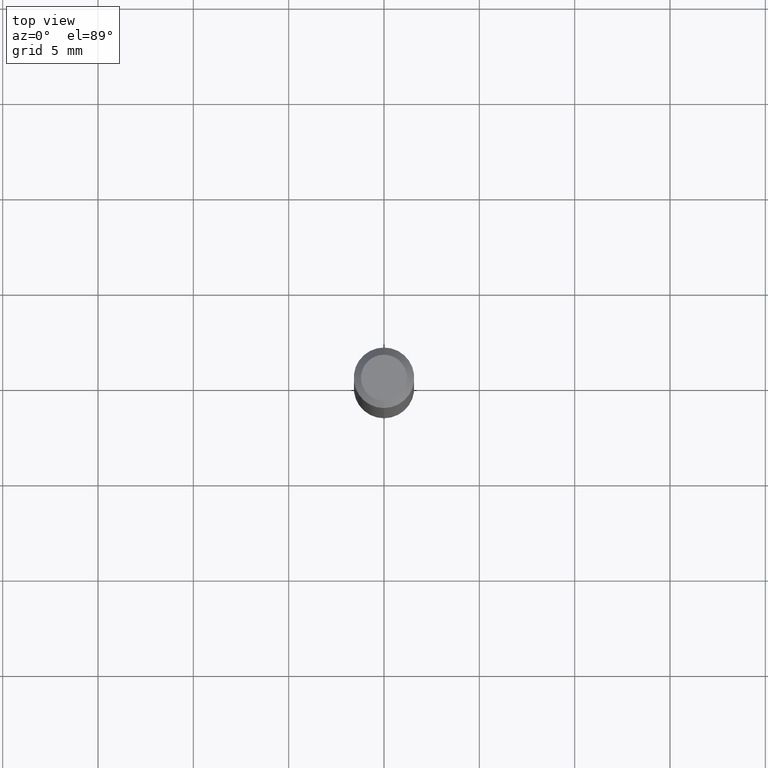
[diagram: clean part render]
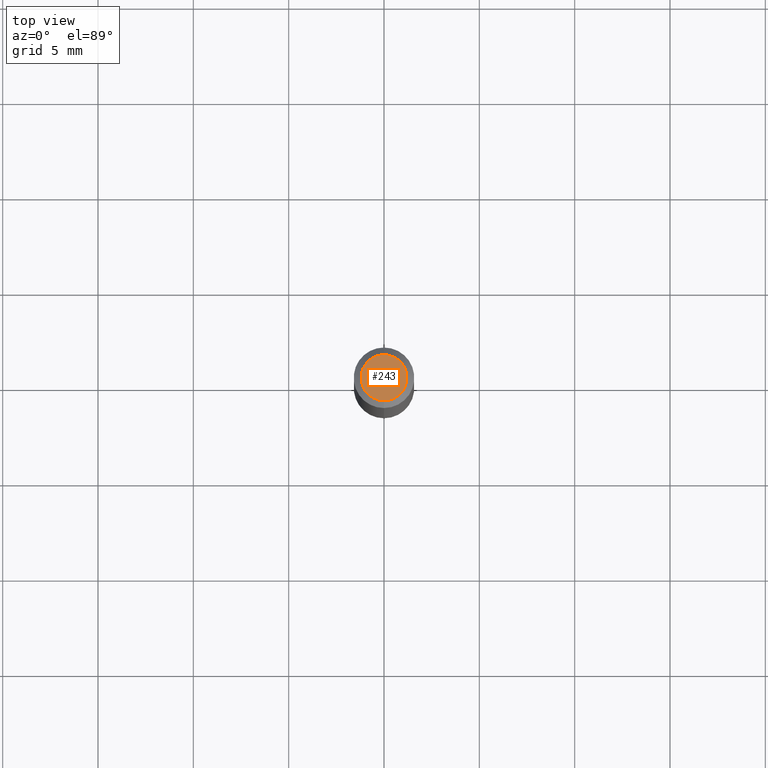
[diagram: same view with one face highlighted and labeled with its STEP entity id]
A machine part, top view. The second image highlights one B-rep face of the part: STEP entity #243.
In plain terms, the highlighted planar face has unit normal (0, -0, -1).
Its self-contained STEP definition (entity closure, byte-faithful):
#24 = CARTESIAN_POINT ( 'NONE',  ( 2.166989206773624835E-46, -3.093853633205331815E-32, -8.861195804374694260E-18 ) ) ;
#42 = PLANE ( 'NONE',  #312 ) ;
#58 = AXIS2_PLACEMENT_3D ( 'NONE', #191, #259, #379 ) ;
#92 = CIRCLE ( 'NONE', #58, 0.04749999999999999362 ) ;
#105 = EDGE_CURVE ( 'NONE', #434, #320, #92, .T. ) ;
#118 = ORIENTED_EDGE ( 'NONE', *, *, #325, .T. ) ;
#191 = CARTESIAN_POINT ( 'NONE',  ( 2.166989206773624835E-46, -3.093853633205331815E-32, -8.861195804374694260E-18 ) ) ;
#196 = CARTESIAN_POINT ( 'NONE',  ( 3.840629472727447874E-16, 0.04749999999999999362, -1.747056831868805136E-16 ) ) ;
#203 = DIRECTION ( 'NONE',  ( 6.982962677686265922E-15, 1.000000000000000000, -3.491462892263280997E-15 ) ) ;
#207 = FACE_OUTER_BOUND ( 'NONE', #311, .T. ) ;
#223 = AXIS2_PLACEMENT_3D ( 'NONE', #24, #265, #419 ) ;
#243 = ADVANCED_FACE ( 'NONE', ( #207 ), #42, .F. ) ;
#259 = DIRECTION ( 'NONE',  ( -2.445481687363009475E-29, 3.491462892263280603E-15, 1.000000000000000000 ) ) ;
#265 = DIRECTION ( 'NONE',  ( -2.445481687363009475E-29, 3.491462892263280603E-15, 1.000000000000000000 ) ) ;
#311 = EDGE_LOOP ( 'NONE', ( #362, #118 ) ) ;
#312 = AXIS2_PLACEMENT_3D ( 'NONE', #360, #329, #203 ) ;
#320 = VERTEX_POINT ( 'NONE', #335 ) ;
#325 = EDGE_CURVE ( 'NONE', #320, #434, #390, .T. ) ;
#329 = DIRECTION ( 'NONE',  ( 2.445481687363008914E-29, -3.491462892263280997E-15, -1.000000000000000000 ) ) ;
#335 = CARTESIAN_POINT ( 'NONE',  ( -3.773273898774340269E-16, -0.04749999999999999362, 1.569832915781311190E-16 ) ) ;
#360 = CARTESIAN_POINT ( 'NONE',  ( 3.316907271900976096E-16, 0.04749999999999999362, -1.702750852846931465E-16 ) ) ;
#362 = ORIENTED_EDGE ( 'NONE', *, *, #105, .T. ) ;
#379 = DIRECTION ( 'NONE',  ( -6.982962677686266711E-15, -1.000000000000000000, 3.491462892263280603E-15 ) ) ;
#390 = CIRCLE ( 'NONE', #223, 0.04749999999999999362 ) ;
#419 = DIRECTION ( 'NONE',  ( -6.982962677686266711E-15, -1.000000000000000000, 3.491462892263280603E-15 ) ) ;
#434 = VERTEX_POINT ( 'NONE', #196 ) ;